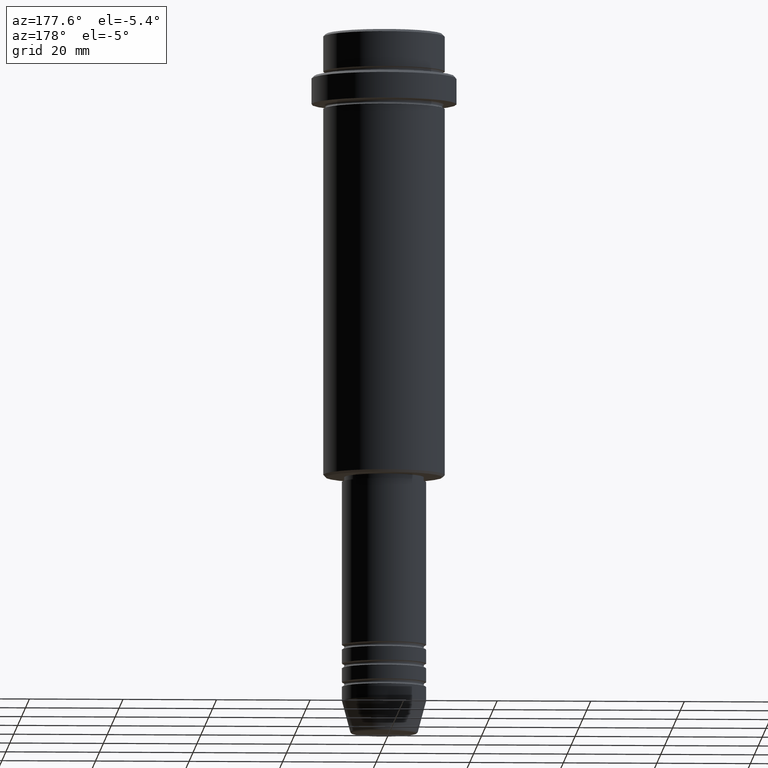
[diagram: clean part render]
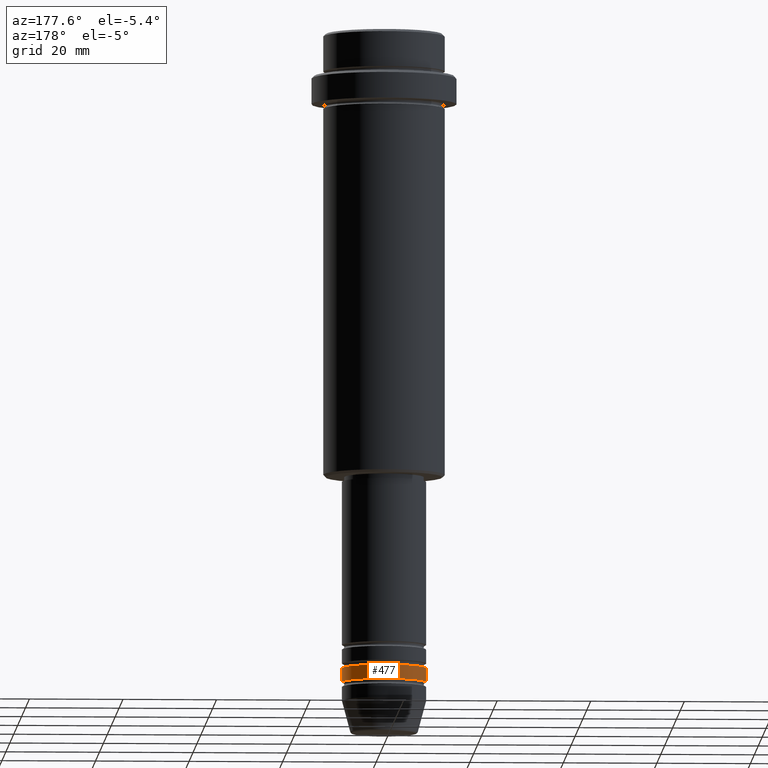
[diagram: same view with one face highlighted and labeled with its STEP entity id]
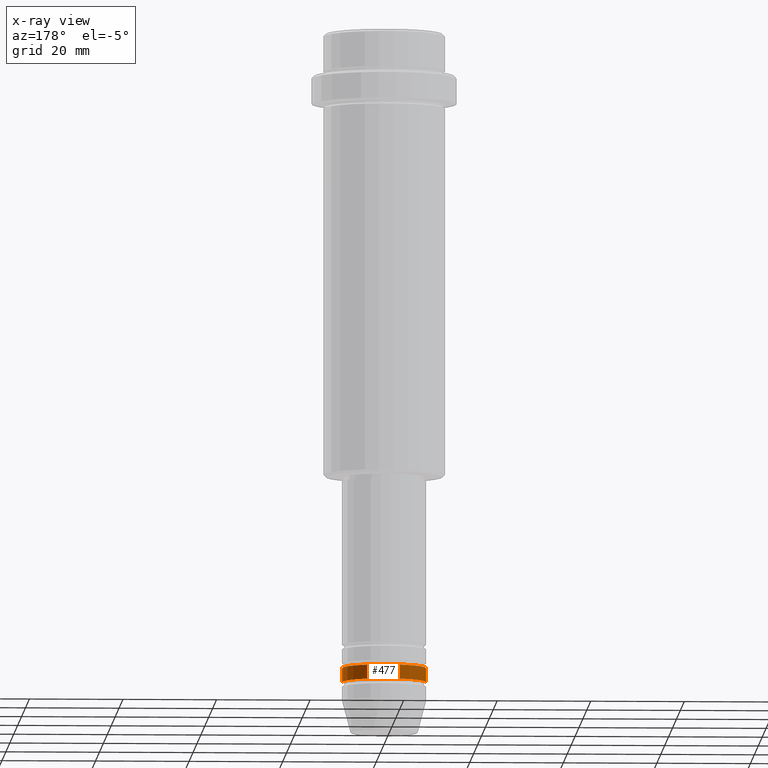
[diagram: x-ray of the same camera — body ghosted, the highlighted face saturated]
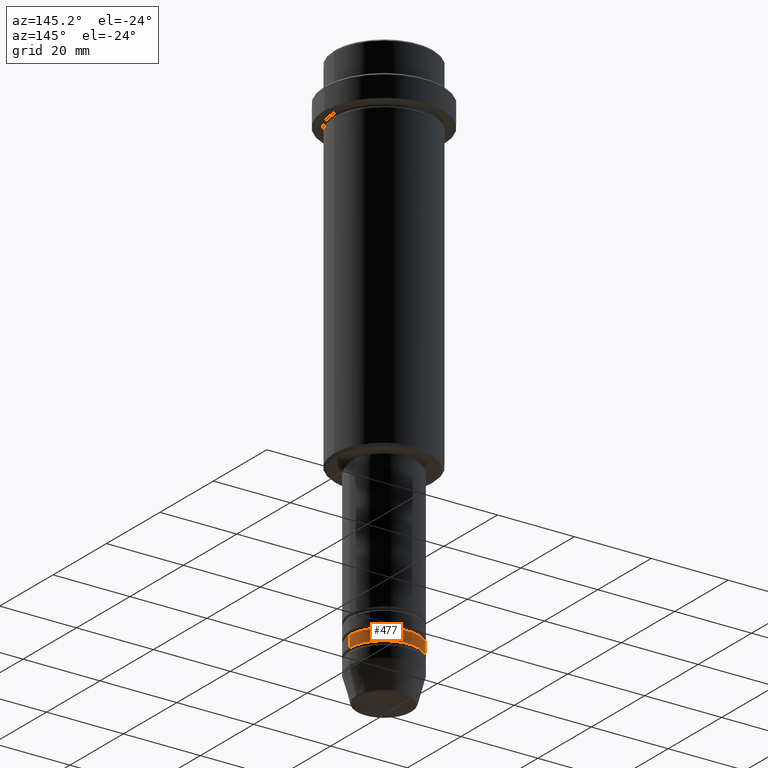
[diagram: same view with one face highlighted and labeled with its STEP entity id]
A machine part, auxiliary view. The second image highlights one B-rep face of the part: STEP entity #477.
The next image is the same camera in x-ray: the body ghosted, the highlighted face saturated — about 0% of this face is hidden behind the body in this view.
A second angle (auxiliary view) of the same face is appended — the face is thin or edge-on in the first view.
In plain terms, the highlighted cylindrical surface (partial cylindrical patch) has radius 9 mm, axis along (-0, -0, 1).
Its self-contained STEP definition (entity closure, byte-faithful):
#22 = EDGE_CURVE ( 'NONE', #272, #1032, #303, .T. ) ;
#33 = VERTEX_POINT ( 'NONE', #924 ) ;
#41 = ORIENTED_EDGE ( 'NONE', *, *, #589, .F. ) ;
#59 = ORIENTED_EDGE ( 'NONE', *, *, #409, .F. ) ;
#64 = CARTESIAN_POINT ( 'NONE',  ( 0.000000000000000000, 0.000000000000000000, -135.9999999999998863 ) ) ;
#73 = DIRECTION ( 'NONE',  ( -0.000000000000000000, -0.000000000000000000, 1.000000000000000000 ) ) ;
#166 = CARTESIAN_POINT ( 'NONE',  ( -9.000000000000000000, 1.102182119232617714E-15, -138.9999999999999147 ) ) ;
#240 = VECTOR ( 'NONE', #350, 1000.000000000000000 ) ;
#272 = VERTEX_POINT ( 'NONE', #1147 ) ;
#277 = VERTEX_POINT ( 'NONE', #1018 ) ;
#283 = AXIS2_PLACEMENT_3D ( 'NONE', #800, #73, #811 ) ;
#303 = CIRCLE ( 'NONE', #283, 9.000000000000000000 ) ;
#350 = DIRECTION ( 'NONE',  ( -0.000000000000000000, -0.000000000000000000, 1.000000000000000000 ) ) ;
#356 = DIRECTION ( 'NONE',  ( -0.000000000000000000, -0.000000000000000000, 1.000000000000000000 ) ) ;
#409 = EDGE_CURVE ( 'NONE', #33, #277, #1403, .T. ) ;
#462 = LINE ( 'NONE', #1119, #240 ) ;
#477 = ADVANCED_FACE ( 'NONE', ( #552 ), #633, .T. ) ;
#504 = DIRECTION ( 'NONE',  ( 1.000000000000000000, 0.000000000000000000, 0.000000000000000000 ) ) ;
#552 = FACE_OUTER_BOUND ( 'NONE', #752, .T. ) ;
#589 = EDGE_CURVE ( 'NONE', #272, #33, #881, .T. ) ;
#633 = CYLINDRICAL_SURFACE ( 'NONE', #1307, 9.000000000000000000 ) ;
#657 = EDGE_CURVE ( 'NONE', #1032, #277, #462, .T. ) ;
#752 = EDGE_LOOP ( 'NONE', ( #920, #926, #59, #41 ) ) ;
#781 = AXIS2_PLACEMENT_3D ( 'NONE', #64, #1277, #504 ) ;
#800 = CARTESIAN_POINT ( 'NONE',  ( 0.000000000000000000, 0.000000000000000000, -138.9999999999999147 ) ) ;
#811 = DIRECTION ( 'NONE',  ( 1.000000000000000000, 0.000000000000000000, 0.000000000000000000 ) ) ;
#881 = LINE ( 'NONE', #1015, #1156 ) ;
#920 = ORIENTED_EDGE ( 'NONE', *, *, #22, .T. ) ;
#924 = CARTESIAN_POINT ( 'NONE',  ( 9.000000000000000000, 0.000000000000000000, -135.9999999999998863 ) ) ;
#926 = ORIENTED_EDGE ( 'NONE', *, *, #657, .T. ) ;
#982 = DIRECTION ( 'NONE',  ( 1.000000000000000000, 0.000000000000000000, 0.000000000000000000 ) ) ;
#995 = DIRECTION ( 'NONE',  ( -0.000000000000000000, -0.000000000000000000, 1.000000000000000000 ) ) ;
#1015 = CARTESIAN_POINT ( 'NONE',  ( 9.000000000000000000, 0.000000000000000000, 0.000000000000000000 ) ) ;
#1018 = CARTESIAN_POINT ( 'NONE',  ( -9.000000000000000000, 1.102182119232617714E-15, -135.9999999999998863 ) ) ;
#1032 = VERTEX_POINT ( 'NONE', #166 ) ;
#1119 = CARTESIAN_POINT ( 'NONE',  ( -9.000000000000000000, 1.102182119232617714E-15, 0.000000000000000000 ) ) ;
#1147 = CARTESIAN_POINT ( 'NONE',  ( 9.000000000000000000, 0.000000000000000000, -138.9999999999999147 ) ) ;
#1156 = VECTOR ( 'NONE', #356, 1000.000000000000000 ) ;
#1203 = CARTESIAN_POINT ( 'NONE',  ( 0.000000000000000000, 0.000000000000000000, 0.000000000000000000 ) ) ;
#1277 = DIRECTION ( 'NONE',  ( -0.000000000000000000, -0.000000000000000000, 1.000000000000000000 ) ) ;
#1307 = AXIS2_PLACEMENT_3D ( 'NONE', #1203, #995, #982 ) ;
#1403 = CIRCLE ( 'NONE', #781, 9.000000000000000000 ) ;